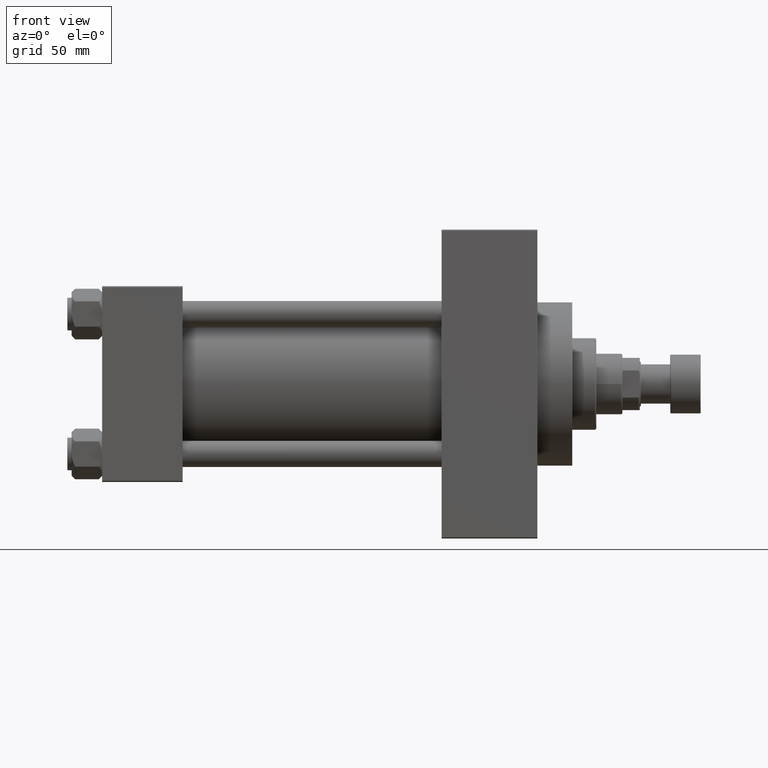
[diagram: clean part render]
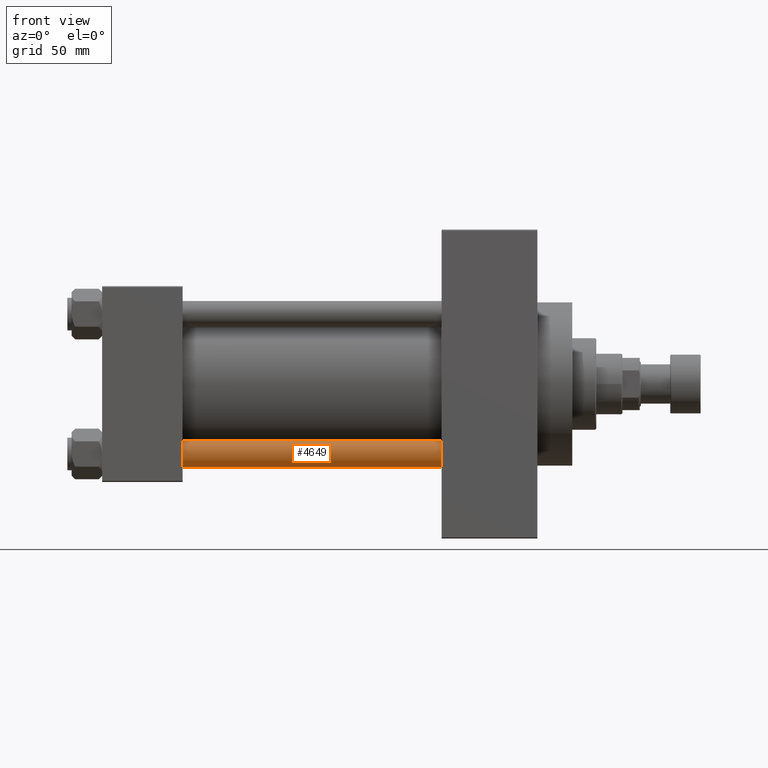
[diagram: same view with one face highlighted and labeled with its STEP entity id]
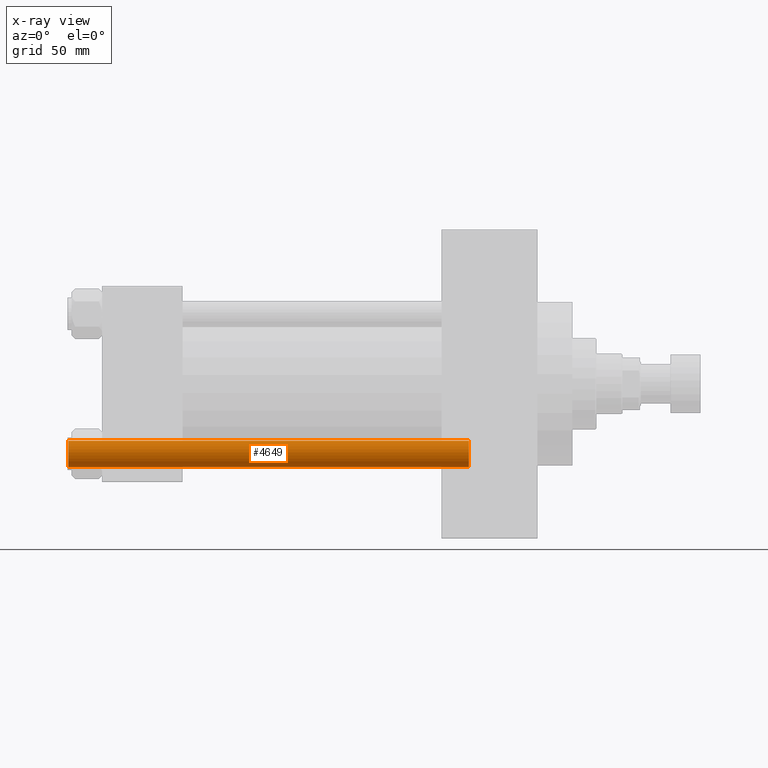
[diagram: x-ray of the same camera — body ghosted, the highlighted face saturated]
A machine part, front view. The second image highlights one B-rep face of the part: STEP entity #4649.
The next image is the same camera in x-ray: the body ghosted, the highlighted face saturated — about 0% of this face is hidden behind the body in this view.
In plain terms, the highlighted cylindrical surface (edge-blend (fillet) strip) has radius 6 mm, axis along (1, 0, 0).
Its self-contained STEP definition (entity closure, byte-faithful):
#1362 = ORIENTED_EDGE ( 'NONE', *, *, #16727, .F. ) ;
#1499 = CARTESIAN_POINT ( 'NONE',  ( 6.000000000000000888, 7.347880794884120722E-16, 0.5000000000000281997 ) ) ;
#3550 = AXIS2_PLACEMENT_3D ( 'NONE', #47082, #9959, #18383 ) ;
#3716 = LINE ( 'NONE', #22486, #7372 ) ;
#4130 = DIRECTION ( 'NONE',  ( -0.000000000000000000, -0.000000000000000000, -1.000000000000000000 ) ) ;
#4649 = ADVANCED_FACE ( 'NONE', ( #47544 ), #26056, .T. ) ;
#7236 = CARTESIAN_POINT ( 'NONE',  ( 6.000000000000000888, 7.347880794884120722E-16, 184.5000000000000000 ) ) ;
#7372 = VECTOR ( 'NONE', #19113, 1000.000000000000000 ) ;
#7850 = CARTESIAN_POINT ( 'NONE',  ( -6.000000000000000888, 0.000000000000000000, 184.5000000000000000 ) ) ;
#8520 = VERTEX_POINT ( 'NONE', #1499 ) ;
#9716 = EDGE_CURVE ( 'NONE', #8520, #20925, #18163, .T. ) ;
#9959 = DIRECTION ( 'NONE',  ( -0.000000000000000000, -0.000000000000000000, 1.000000000000000000 ) ) ;
#10884 = DIRECTION ( 'NONE',  ( -1.000000000000000000, 0.000000000000000000, 0.000000000000000000 ) ) ;
#12947 = VECTOR ( 'NONE', #13065, 1000.000000000000000 ) ;
#13065 = DIRECTION ( 'NONE',  ( -0.000000000000000000, -0.000000000000000000, -1.000000000000000000 ) ) ;
#14515 = CARTESIAN_POINT ( 'NONE',  ( 0.000000000000000000, 0.000000000000000000, 185.0000000000000000 ) ) ;
#15023 = VERTEX_POINT ( 'NONE', #7850 ) ;
#15665 = AXIS2_PLACEMENT_3D ( 'NONE', #14515, #4130, #10884 ) ;
#16727 = EDGE_CURVE ( 'NONE', #15023, #20925, #3716, .T. ) ;
#16847 = EDGE_CURVE ( 'NONE', #15023, #37904, #40479, .T. ) ;
#17147 = LINE ( 'NONE', #31851, #12947 ) ;
#18163 = CIRCLE ( 'NONE', #3550, 6.000000000000000888 ) ;
#18383 = DIRECTION ( 'NONE',  ( 1.000000000000000000, 0.000000000000000000, 0.000000000000000000 ) ) ;
#19113 = DIRECTION ( 'NONE',  ( -0.000000000000000000, -0.000000000000000000, -1.000000000000000000 ) ) ;
#19593 = DIRECTION ( 'NONE',  ( 0.000000000000000000, 0.000000000000000000, -1.000000000000000000 ) ) ;
#20031 = ORIENTED_EDGE ( 'NONE', *, *, #9716, .T. ) ;
#20925 = VERTEX_POINT ( 'NONE', #27437 ) ;
#22486 = CARTESIAN_POINT ( 'NONE',  ( -6.000000000000000888, 0.000000000000000000, 185.0000000000000000 ) ) ;
#22814 = AXIS2_PLACEMENT_3D ( 'NONE', #23198, #19593, #41777 ) ;
#23198 = CARTESIAN_POINT ( 'NONE',  ( 0.000000000000000000, 0.000000000000000000, 184.5000000000000000 ) ) ;
#23516 = ORIENTED_EDGE ( 'NONE', *, *, #25005, .T. ) ;
#25005 = EDGE_CURVE ( 'NONE', #37904, #8520, #17147, .T. ) ;
#26056 = CYLINDRICAL_SURFACE ( 'NONE', #15665, 6.000000000000000888 ) ;
#27437 = CARTESIAN_POINT ( 'NONE',  ( -6.000000000000000888, 0.000000000000000000, 0.5000000000000281997 ) ) ;
#31093 = EDGE_LOOP ( 'NONE', ( #44112, #23516, #20031, #1362 ) ) ;
#31851 = CARTESIAN_POINT ( 'NONE',  ( 6.000000000000000888, 7.347880794884120722E-16, 185.0000000000000000 ) ) ;
#37904 = VERTEX_POINT ( 'NONE', #7236 ) ;
#40479 = CIRCLE ( 'NONE', #22814, 6.000000000000000888 ) ;
#41777 = DIRECTION ( 'NONE',  ( 1.000000000000000000, 0.000000000000000000, 0.000000000000000000 ) ) ;
#44112 = ORIENTED_EDGE ( 'NONE', *, *, #16847, .T. ) ;
#47082 = CARTESIAN_POINT ( 'NONE',  ( 0.000000000000000000, 0.000000000000000000, 0.5000000000000281997 ) ) ;
#47544 = FACE_OUTER_BOUND ( 'NONE', #31093, .T. ) ;